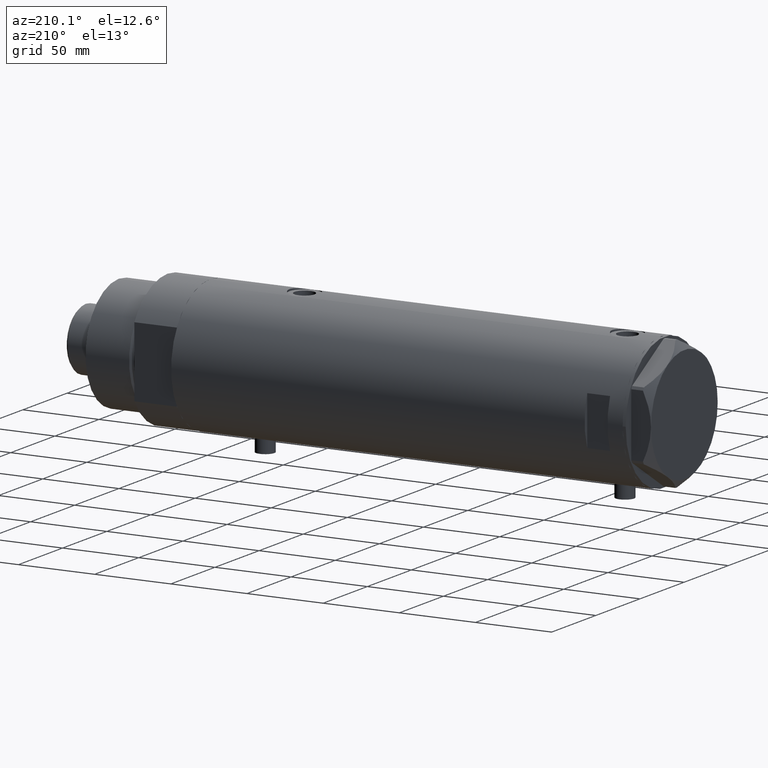
[diagram: clean part render]
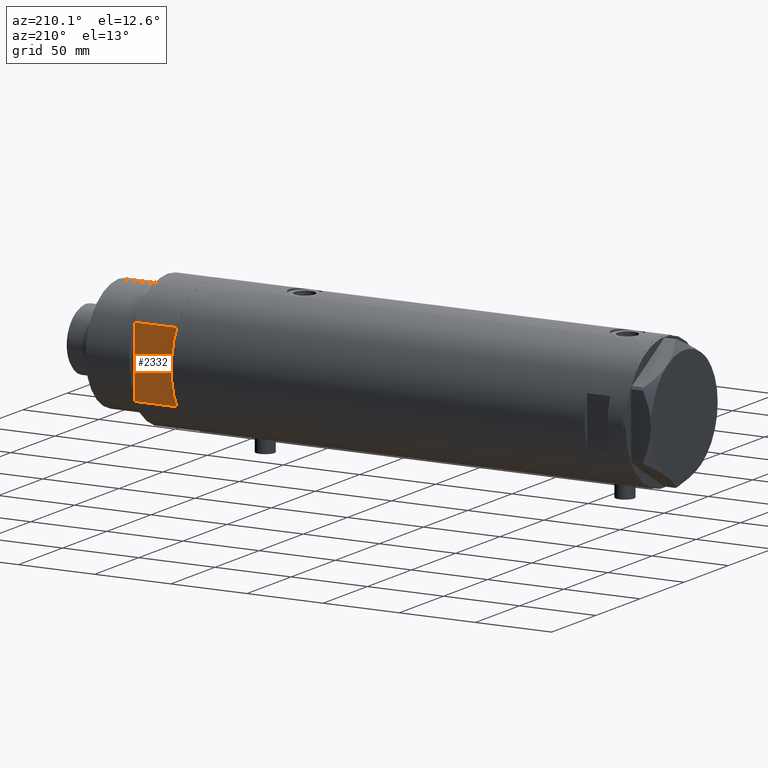
[diagram: same view with one face highlighted and labeled with its STEP entity id]
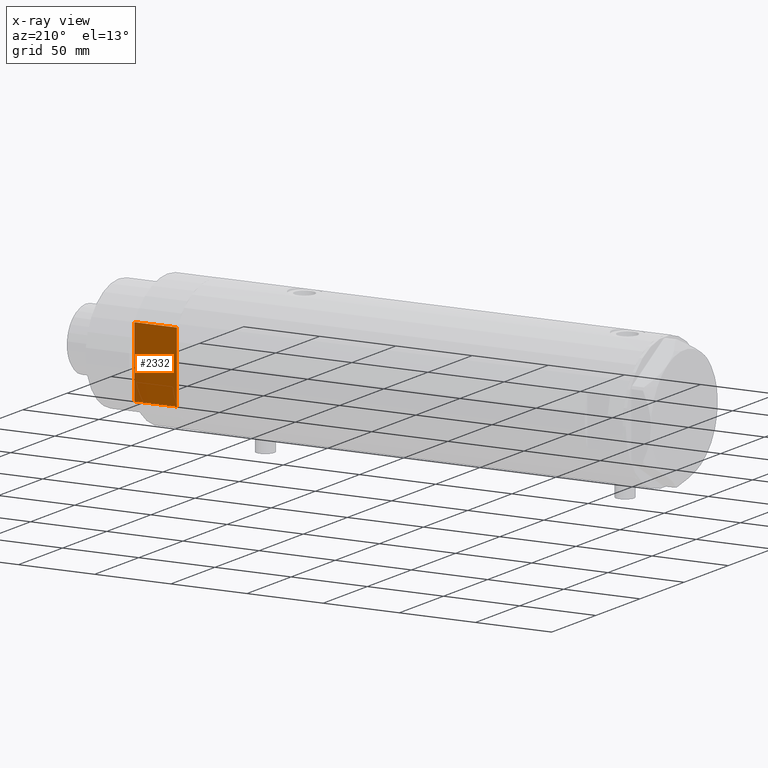
[diagram: x-ray of the same camera — body ghosted, the highlighted face saturated]
A machine part, auxiliary view. The second image highlights one B-rep face of the part: STEP entity #2332.
The next image is the same camera in x-ray: the body ghosted, the highlighted face saturated — about 0% of this face is hidden behind the body in this view.
In plain terms, the highlighted planar face has unit normal (0, -1, -0).
Its self-contained STEP definition (entity closure, byte-faithful):
#174 = LINE ( 'NONE', #3390, #1266 ) ;
#337 = CARTESIAN_POINT ( 'NONE',  ( -23.01629857296780557, 37.50000000000000000, 0.000000000000000000 ) ) ;
#342 = EDGE_CURVE ( 'NONE', #1508, #2413, #3089, .T. ) ;
#420 = CARTESIAN_POINT ( 'NONE',  ( -23.01629857296780557, 37.50000000000000000, 27.89999999999999858 ) ) ;
#546 = EDGE_CURVE ( 'NONE', #1508, #1427, #3503, .T. ) ;
#570 = CARTESIAN_POINT ( 'NONE',  ( 13.91941090707505957, 37.50000000000000000, 0.000000000000000000 ) ) ;
#619 = DIRECTION ( 'NONE',  ( 1.000000000000000000, 0.000000000000000000, 0.000000000000000000 ) ) ;
#760 = ORIENTED_EDGE ( 'NONE', *, *, #546, .T. ) ;
#787 = CARTESIAN_POINT ( 'NONE',  ( 0.000000000000000000, 37.50000000000000000, 27.89999999999999858 ) ) ;
#921 = CARTESIAN_POINT ( 'NONE',  ( -23.01629857296780557, 37.50000000000000000, 0.000000000000000000 ) ) ;
#1010 = EDGE_LOOP ( 'NONE', ( #3697, #3406, #3419, #2894, #3743, #2289, #760 ) ) ;
#1030 = VECTOR ( 'NONE', #619, 1000.000000000000000 ) ;
#1266 = VECTOR ( 'NONE', #3053, 1000.000000000000000 ) ;
#1295 = LINE ( 'NONE', #921, #3154 ) ;
#1381 = EDGE_CURVE ( 'NONE', #1427, #3478, #2242, .T. ) ;
#1427 = VERTEX_POINT ( 'NONE', #3159 ) ;
#1477 = DIRECTION ( 'NONE',  ( -0.000000000000000000, -0.000000000000000000, 1.000000000000000000 ) ) ;
#1508 = VERTEX_POINT ( 'NONE', #3386 ) ;
#1617 = VECTOR ( 'NONE', #4477, 1000.000000000000000 ) ;
#1730 = PLANE ( 'NONE',  #4534 ) ;
#1907 = LINE ( 'NONE', #3313, #3881 ) ;
#1989 = VERTEX_POINT ( 'NONE', #570 ) ;
#2074 = CARTESIAN_POINT ( 'NONE',  ( -13.91941090707505957, 37.50000000000000000, 0.000000000000000000 ) ) ;
#2135 = EDGE_CURVE ( 'NONE', #1989, #2603, #174, .T. ) ;
#2140 = VERTEX_POINT ( 'NONE', #3368 ) ;
#2242 = LINE ( 'NONE', #420, #2334 ) ;
#2289 = ORIENTED_EDGE ( 'NONE', *, *, #342, .F. ) ;
#2332 = ADVANCED_FACE ( 'NONE', ( #3150 ), #1730, .F. ) ;
#2334 = VECTOR ( 'NONE', #4337, 1000.000000000000000 ) ;
#2413 = VERTEX_POINT ( 'NONE', #2074 ) ;
#2424 = DIRECTION ( 'NONE',  ( 0.000000000000000000, -0.000000000000000000, -1.000000000000000000 ) ) ;
#2547 = DIRECTION ( 'NONE',  ( -0.000000000000000000, -0.000000000000000000, 1.000000000000000000 ) ) ;
#2603 = VERTEX_POINT ( 'NONE', #4408 ) ;
#2894 = ORIENTED_EDGE ( 'NONE', *, *, #2135, .F. ) ;
#2915 = EDGE_CURVE ( 'NONE', #3478, #2140, #4121, .T. ) ;
#3053 = DIRECTION ( 'NONE',  ( 1.000000000000000000, 0.000000000000000000, 0.000000000000000000 ) ) ;
#3089 = LINE ( 'NONE', #3491, #1617 ) ;
#3150 = FACE_OUTER_BOUND ( 'NONE', #1010, .T. ) ;
#3154 = VECTOR ( 'NONE', #4463, 1000.000000000000000 ) ;
#3159 = CARTESIAN_POINT ( 'NONE',  ( -23.01629857296780557, 37.50000000000000000, 27.89999999999999858 ) ) ;
#3288 = VECTOR ( 'NONE', #2547, 1000.000000000000000 ) ;
#3313 = CARTESIAN_POINT ( 'NONE',  ( 23.01629857296780557, 37.50000000000000000, 0.000000000000000000 ) ) ;
#3368 = CARTESIAN_POINT ( 'NONE',  ( 23.01629857296780557, 37.50000000000000000, 27.89999999999999858 ) ) ;
#3386 = CARTESIAN_POINT ( 'NONE',  ( -23.01629857296780557, 37.50000000000000000, 0.000000000000000000 ) ) ;
#3390 = CARTESIAN_POINT ( 'NONE',  ( -23.01629857296780557, 37.50000000000000000, 0.000000000000000000 ) ) ;
#3406 = ORIENTED_EDGE ( 'NONE', *, *, #2915, .T. ) ;
#3419 = ORIENTED_EDGE ( 'NONE', *, *, #3485, .F. ) ;
#3478 = VERTEX_POINT ( 'NONE', #787 ) ;
#3485 = EDGE_CURVE ( 'NONE', #2603, #2140, #1907, .T. ) ;
#3491 = CARTESIAN_POINT ( 'NONE',  ( -23.01629857296780557, 37.50000000000000000, 0.000000000000000000 ) ) ;
#3503 = LINE ( 'NONE', #337, #3288 ) ;
#3697 = ORIENTED_EDGE ( 'NONE', *, *, #1381, .T. ) ;
#3712 = EDGE_CURVE ( 'NONE', #2413, #1989, #1295, .T. ) ;
#3743 = ORIENTED_EDGE ( 'NONE', *, *, #3712, .F. ) ;
#3777 = CARTESIAN_POINT ( 'NONE',  ( -23.01629857296780557, 37.50000000000000000, 0.000000000000000000 ) ) ;
#3786 = CARTESIAN_POINT ( 'NONE',  ( -23.01629857296780557, 37.50000000000000000, 27.89999999999999858 ) ) ;
#3881 = VECTOR ( 'NONE', #1477, 1000.000000000000000 ) ;
#4121 = LINE ( 'NONE', #3786, #1030 ) ;
#4337 = DIRECTION ( 'NONE',  ( 1.000000000000000000, 0.000000000000000000, 0.000000000000000000 ) ) ;
#4408 = CARTESIAN_POINT ( 'NONE',  ( 23.01629857296780557, 37.50000000000000000, 0.000000000000000000 ) ) ;
#4463 = DIRECTION ( 'NONE',  ( 1.000000000000000000, 0.000000000000000000, 0.000000000000000000 ) ) ;
#4477 = DIRECTION ( 'NONE',  ( 1.000000000000000000, 0.000000000000000000, 0.000000000000000000 ) ) ;
#4516 = DIRECTION ( 'NONE',  ( 0.000000000000000000, -1.000000000000000000, 0.000000000000000000 ) ) ;
#4534 = AXIS2_PLACEMENT_3D ( 'NONE', #3777, #4516, #2424 ) ;